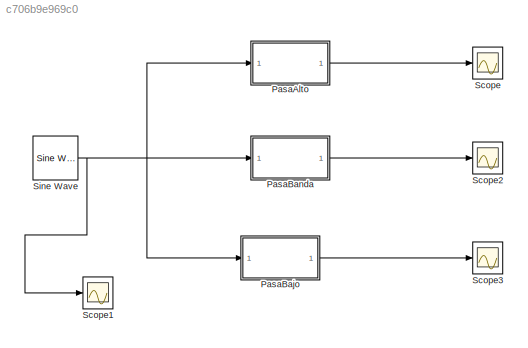
MODEL slx_c706b9e969c0
KIND model
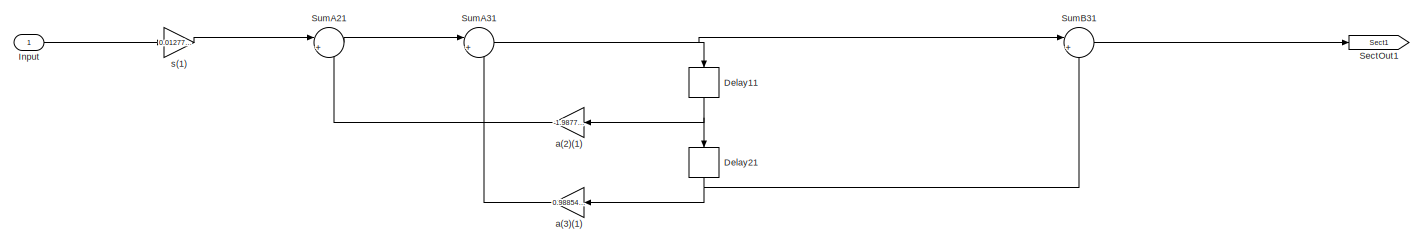
[diagram: PasaAlto - part 1/3, left side, full height]
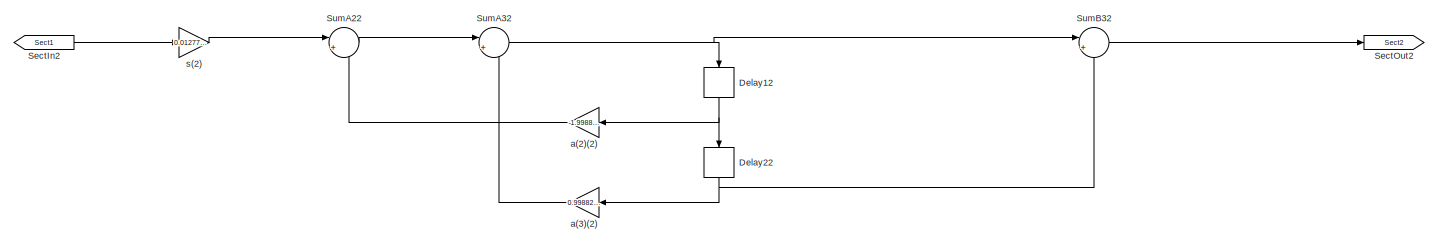
[diagram: PasaAlto - part 2/3, center side, full height]
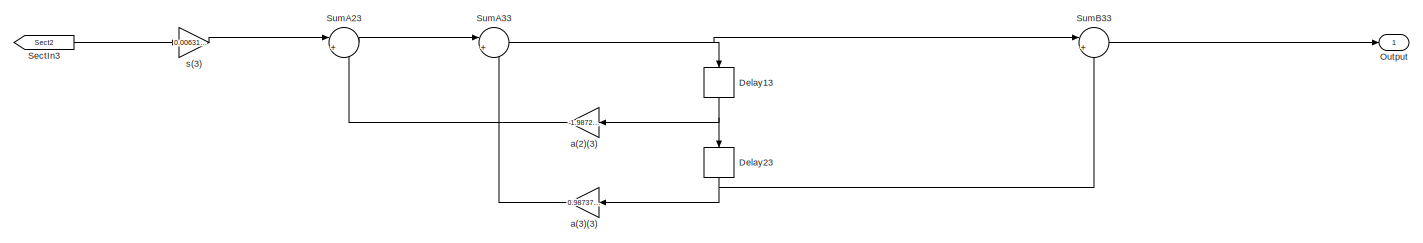
[diagram: PasaAlto - part 3/3, right side, full height]
BLOCK [SubSystem] PasaAlto
  ErrorFcn = dspFilterRealizedInBasicElemsAlgLoopErrFcnCallback
  Ports = [1, 1]
  RequestExecContextInheritance = off
  Tag = FilterWizardSubSystem
  UserDataPersistent = on
BLOCK [Delay] PasaAlto/Delay11
  DelayLength = 1
  InitialCondition = 0
  InputPortMap = u0
  Ports = [1, 1]
BLOCK [Delay] PasaAlto/Delay12
  DelayLength = 1
  InitialCondition = 0
  InputPortMap = u0
  Ports = [1, 1]
BLOCK [Delay] PasaAlto/Delay13
  DelayLength = 1
  InitialCondition = 0
  InputPortMap = u0
  Ports = [1, 1]
BLOCK [Delay] PasaAlto/Delay21
  DelayLength = 1
  InitialCondition = 0
  InputPortMap = u0
  Ports = [1, 1]
BLOCK [Delay] PasaAlto/Delay22
  DelayLength = 1
  InitialCondition = 0
  InputPortMap = u0
  Ports = [1, 1]
BLOCK [Delay] PasaAlto/Delay23
  DelayLength = 1
  InitialCondition = 0
  InputPortMap = u0
  Ports = [1, 1]
BLOCK [Inport] PasaAlto/Input
  IconDisplay = Port number
BLOCK [Outport] PasaAlto/Output
  IconDisplay = Port number
BLOCK [From] PasaAlto/SectIn2
  GotoTag = Sect1
BLOCK [From] PasaAlto/SectIn3
  GotoTag = Sect2
BLOCK [Goto] PasaAlto/SectOut1
  GotoTag = Sect1
BLOCK [Goto] PasaAlto/SectOut2
  GotoTag = Sect2
BLOCK [Sum] PasaAlto/SumA21
  IconShape = round
  InputSameDT = off
  Inputs = |+-
  Ports = [2, 1]
  RndMeth = Nearest
BLOCK [Sum] PasaAlto/SumA22
  IconShape = round
  InputSameDT = off
  Inputs = |+-
  Ports = [2, 1]
  RndMeth = Nearest
BLOCK [Sum] PasaAlto/SumA23
  IconShape = round
  InputSameDT = off
  Inputs = |+-
  Ports = [2, 1]
  RndMeth = Nearest
BLOCK [Sum] PasaAlto/SumA31
  IconShape = round
  InputSameDT = off
  Inputs = |+-
  Ports = [2, 1]
  RndMeth = Nearest
BLOCK [Sum] PasaAlto/SumA32
  IconShape = round
  InputSameDT = off
  Inputs = |+-
  Ports = [2, 1]
  RndMeth = Nearest
BLOCK [Sum] PasaAlto/SumA33
  IconShape = round
  InputSameDT = off
  Inputs = |+-
  Ports = [2, 1]
  RndMeth = Nearest
BLOCK [Sum] PasaAlto/SumB31
  IconShape = round
  InputSameDT = off
  Inputs = |+-
  Ports = [2, 1]
  RndMeth = Nearest
BLOCK [Sum] PasaAlto/SumB32
  IconShape = round
  InputSameDT = off
  Inputs = |+-
  Ports = [2, 1]
  RndMeth = Nearest
BLOCK [Sum] PasaAlto/SumB33
  IconShape = round
  InputSameDT = off
  Inputs = |+-
  Ports = [2, 1]
  RndMeth = Nearest
BLOCK [Gain] PasaAlto/a(2)(1)
  Gain = -1.987749588608001
  ParamDataTypeStr = double
  RndMeth = Nearest
BLOCK [Gain] PasaAlto/a(2)(2)
  Gain = -1.9988145281753462
  ParamDataTypeStr = double
  RndMeth = Nearest
BLOCK [Gain] PasaAlto/a(2)(3)
  Gain = -1.9872962847354858
  ParamDataTypeStr = double
  RndMeth = Nearest
BLOCK [Gain] PasaAlto/a(3)(1)
  Gain = 0.98854305439553891
  ParamDataTypeStr = double
  RndMeth = Nearest
BLOCK [Gain] PasaAlto/a(3)(2)
  Gain = 0.99882285965077311
  ParamDataTypeStr = double
  RndMeth = Nearest
BLOCK [Gain] PasaAlto/a(3)(3)
  Gain = 0.98737734082979844
  ParamDataTypeStr = double
  RndMeth = Nearest
BLOCK [Gain] PasaAlto/s(1)
  Gain = 0.012773832846286337
  ParamDataTypeStr = double
  RndMeth = Nearest
BLOCK [Gain] PasaAlto/s(2)
  Gain = 0.012773832846286337
  ParamDataTypeStr = double
  RndMeth = Nearest
BLOCK [Gain] PasaAlto/s(3)
  Gain = 0.0063113295851007847
  ParamDataTypeStr = double
  RndMeth = Nearest
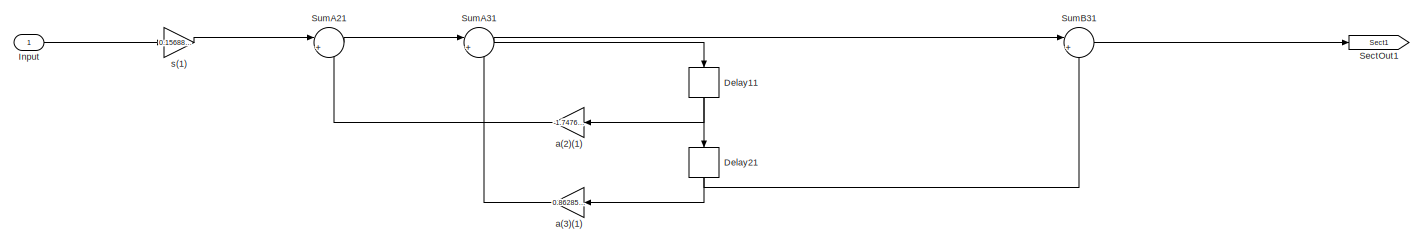
[diagram: PasaBajo - part 1/3, left side, full height]
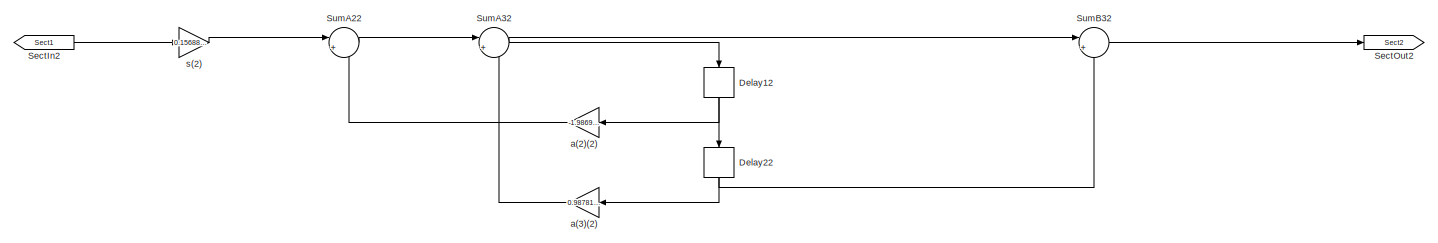
[diagram: PasaBajo - part 2/3, center side, full height]
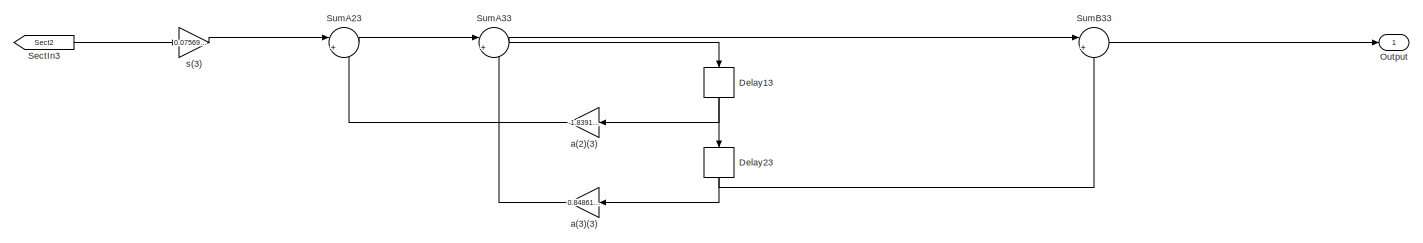
[diagram: PasaBajo - part 3/3, right side, full height]
BLOCK [SubSystem] PasaBajo
  ErrorFcn = dspFilterRealizedInBasicElemsAlgLoopErrFcnCallback
  Ports = [1, 1]
  RequestExecContextInheritance = off
  Tag = FilterWizardSubSystem
  UserDataPersistent = on
BLOCK [Delay] PasaBajo/Delay11
  DelayLength = 1
  InitialCondition = 0
  InputPortMap = u0
  Ports = [1, 1]
BLOCK [Delay] PasaBajo/Delay12
  DelayLength = 1
  InitialCondition = 0
  InputPortMap = u0
  Ports = [1, 1]
BLOCK [Delay] PasaBajo/Delay13
  DelayLength = 1
  InitialCondition = 0
  InputPortMap = u0
  Ports = [1, 1]
BLOCK [Delay] PasaBajo/Delay21
  DelayLength = 1
  InitialCondition = 0
  InputPortMap = u0
  Ports = [1, 1]
BLOCK [Delay] PasaBajo/Delay22
  DelayLength = 1
  InitialCondition = 0
  InputPortMap = u0
  Ports = [1, 1]
BLOCK [Delay] PasaBajo/Delay23
  DelayLength = 1
  InitialCondition = 0
  InputPortMap = u0
  Ports = [1, 1]
BLOCK [Inport] PasaBajo/Input
  IconDisplay = Port number
BLOCK [Outport] PasaBajo/Output
  IconDisplay = Port number
BLOCK [From] PasaBajo/SectIn2
  GotoTag = Sect1
BLOCK [From] PasaBajo/SectIn3
  GotoTag = Sect2
BLOCK [Goto] PasaBajo/SectOut1
  GotoTag = Sect1
BLOCK [Goto] PasaBajo/SectOut2
  GotoTag = Sect2
BLOCK [Sum] PasaBajo/SumA21
  IconShape = round
  InputSameDT = off
  Inputs = |+-
  Ports = [2, 1]
  RndMeth = Nearest
BLOCK [Sum] PasaBajo/SumA22
  IconShape = round
  InputSameDT = off
  Inputs = |+-
  Ports = [2, 1]
  RndMeth = Nearest
BLOCK [Sum] PasaBajo/SumA23
  IconShape = round
  InputSameDT = off
  Inputs = |+-
  Ports = [2, 1]
  RndMeth = Nearest
BLOCK [Sum] PasaBajo/SumA31
  IconShape = round
  InputSameDT = off
  Inputs = |+-
  Ports = [2, 1]
  RndMeth = Nearest
BLOCK [Sum] PasaBajo/SumA32
  IconShape = round
  InputSameDT = off
  Inputs = |+-
  Ports = [2, 1]
  RndMeth = Nearest
BLOCK [Sum] PasaBajo/SumA33
  IconShape = round
  InputSameDT = off
  Inputs = |+-
  Ports = [2, 1]
  RndMeth = Nearest
BLOCK [Sum] PasaBajo/SumB31
  IconShape = round
  InputSameDT = off
  Inputs = |+-
  Ports = [2, 1]
  RndMeth = Nearest
BLOCK [Sum] PasaBajo/SumB32
  IconShape = round
  InputSameDT = off
  Inputs = |+-
  Ports = [2, 1]
  RndMeth = Nearest
BLOCK [Sum] PasaBajo/SumB33
  IconShape = round
  InputSameDT = off
  Inputs = |+-
  Ports = [2, 1]
  RndMeth = Nearest
BLOCK [Gain] PasaBajo/a(2)(1)
  Gain = -1.7476067146279091
  ParamDataTypeStr = double
  RndMeth = Nearest
BLOCK [Gain] PasaBajo/a(2)(2)
  Gain = -1.9869868385575717
  ParamDataTypeStr = double
  RndMeth = Nearest
BLOCK [Gain] PasaBajo/a(2)(3)
  Gain = -1.8391151401762007
  ParamDataTypeStr = double
  RndMeth = Nearest
BLOCK [Gain] PasaBajo/a(3)(1)
  Gain = 0.86285816359711542
  ParamDataTypeStr = double
  RndMeth = Nearest
BLOCK [Gain] PasaBajo/a(3)(2)
  Gain = 0.98781347416610443
  ParamDataTypeStr = double
  RndMeth = Nearest
BLOCK [Gain] PasaBajo/a(3)(3)
  Gain = 0.848616819712536
  ParamDataTypeStr = double
  RndMeth = Nearest
BLOCK [Gain] PasaBajo/s(1)
  Gain = 0.15688754772422159
  ParamDataTypeStr = double
  RndMeth = Nearest
BLOCK [Gain] PasaBajo/s(2)
  Gain = 0.15688754772422159
  ParamDataTypeStr = double
  RndMeth = Nearest
BLOCK [Gain] PasaBajo/s(3)
  Gain = 0.075691590143732002
  ParamDataTypeStr = double
  RndMeth = Nearest
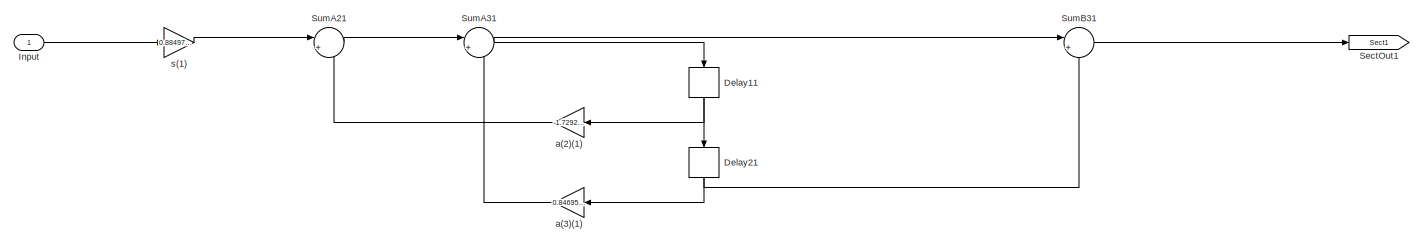
[diagram: PasaBanda - part 1/3, left side, full height]
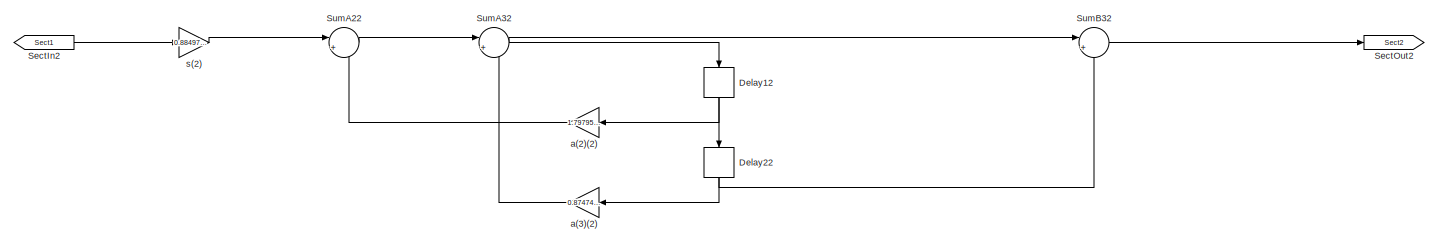
[diagram: PasaBanda - part 2/3, center side, full height]
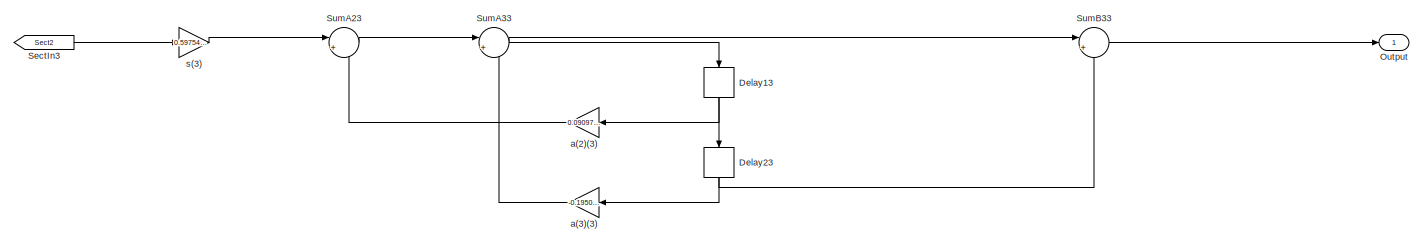
[diagram: PasaBanda - part 3/3, right side, full height]
BLOCK [SubSystem] PasaBanda
  ErrorFcn = dspFilterRealizedInBasicElemsAlgLoopErrFcnCallback
  Ports = [1, 1]
  RequestExecContextInheritance = off
  Tag = FilterWizardSubSystem
  UserDataPersistent = on
BLOCK [Delay] PasaBanda/Delay11
  DelayLength = 1
  InitialCondition = 0
  InputPortMap = u0
  Ports = [1, 1]
BLOCK [Delay] PasaBanda/Delay12
  DelayLength = 1
  InitialCondition = 0
  InputPortMap = u0
  Ports = [1, 1]
BLOCK [Delay] PasaBanda/Delay13
  DelayLength = 1
  InitialCondition = 0
  InputPortMap = u0
  Ports = [1, 1]
BLOCK [Delay] PasaBanda/Delay21
  DelayLength = 1
  InitialCondition = 0
  InputPortMap = u0
  Ports = [1, 1]
BLOCK [Delay] PasaBanda/Delay22
  DelayLength = 1
  InitialCondition = 0
  InputPortMap = u0
  Ports = [1, 1]
BLOCK [Delay] PasaBanda/Delay23
  DelayLength = 1
  InitialCondition = 0
  InputPortMap = u0
  Ports = [1, 1]
BLOCK [Inport] PasaBanda/Input
  IconDisplay = Port number
BLOCK [Outport] PasaBanda/Output
  IconDisplay = Port number
BLOCK [From] PasaBanda/SectIn2
  GotoTag = Sect1
BLOCK [From] PasaBanda/SectIn3
  GotoTag = Sect2
BLOCK [Goto] PasaBanda/SectOut1
  GotoTag = Sect1
BLOCK [Goto] PasaBanda/SectOut2
  GotoTag = Sect2
BLOCK [Sum] PasaBanda/SumA21
  IconShape = round
  InputSameDT = off
  Inputs = |+-
  Ports = [2, 1]
  RndMeth = Nearest
BLOCK [Sum] PasaBanda/SumA22
  IconShape = round
  InputSameDT = off
  Inputs = |+-
  Ports = [2, 1]
  RndMeth = Nearest
BLOCK [Sum] PasaBanda/SumA23
  IconShape = round
  InputSameDT = off
  Inputs = |+-
  Ports = [2, 1]
  RndMeth = Nearest
BLOCK [Sum] PasaBanda/SumA31
  IconShape = round
  InputSameDT = off
  Inputs = |+-
  Ports = [2, 1]
  RndMeth = Nearest
BLOCK [Sum] PasaBanda/SumA32
  IconShape = round
  InputSameDT = off
  Inputs = |+-
  Ports = [2, 1]
  RndMeth = Nearest
BLOCK [Sum] PasaBanda/SumA33
  IconShape = round
  InputSameDT = off
  Inputs = |+-
  Ports = [2, 1]
  RndMeth = Nearest
BLOCK [Sum] PasaBanda/SumB31
  IconShape = round
  InputSameDT = off
  Inputs = |+-
  Ports = [2, 1]
  RndMeth = Nearest
BLOCK [Sum] PasaBanda/SumB32
  IconShape = round
  InputSameDT = off
  Inputs = |+-
  Ports = [2, 1]
  RndMeth = Nearest
BLOCK [Sum] PasaBanda/SumB33
  IconShape = round
  InputSameDT = off
  Inputs = |+-
  Ports = [2, 1]
  RndMeth = Nearest
BLOCK [Gain] PasaBanda/a(2)(1)
  Gain = -1.7292195717005869
  ParamDataTypeStr = double
  RndMeth = Nearest
BLOCK [Gain] PasaBanda/a(2)(2)
  Gain = 1.797957474694678
  ParamDataTypeStr = double
  RndMeth = Nearest
BLOCK [Gain] PasaBanda/a(2)(3)
  Gain = 0.090972797076221579
  ParamDataTypeStr = double
  RndMeth = Nearest
BLOCK [Gain] PasaBanda/a(3)(1)
  Gain = 0.84695672795657673
  ParamDataTypeStr = double
  RndMeth = Nearest
BLOCK [Gain] PasaBanda/a(3)(2)
  Gain = 0.87474639288367206
  ParamDataTypeStr = double
  RndMeth = Nearest
BLOCK [Gain] PasaBanda/a(3)(3)
  Gain = -0.19508844867184374
  ParamDataTypeStr = double
  RndMeth = Nearest
BLOCK [Gain] PasaBanda/s(1)
  Gain = 0.88497051970122076
  ParamDataTypeStr = double
  RndMeth = Nearest
BLOCK [Gain] PasaBanda/s(2)
  Gain = 0.88497051970122076
  ParamDataTypeStr = double
  RndMeth = Nearest
BLOCK [Gain] PasaBanda/s(3)
  Gain = 0.59754422433592191
  ParamDataTypeStr = double
  RndMeth = Nearest
BLOCK [Scope] Scope
  Floating = off
  NumInputPorts = 1
  Ports = [1]
  ShowLegends = off
BLOCK [Scope] Scope1
  Floating = off
  NumInputPorts = 1
  Ports = [1]
  SaveName = ScopeData1
  ShowLegends = off
BLOCK [Scope] Scope2
  Floating = off
  NumInputPorts = 1
  Ports = [1]
  SaveName = ScopeData2
  ShowLegends = off
BLOCK [Scope] Scope3
  Floating = off
  NumInputPorts = 1
  Ports = [1]
  SaveName = ScopeData3
  ShowLegends = off
BLOCK [Reference] Sine Wave  REF=dspsrcs4/Sine Wave
  Amplitude = 1
  CompMethod = Trigonometric fcn
  Frequency = 20000
  LastOutDataTypeStr = double
  OutComplex = Real
  OutDataTypeStr = double
  Phase = 0
  Ports = [0, 1]
  ResetState = Restart at time zero
  SampleMode = Discrete
  SampleTime = 1/1000
  SamplesPerFrame = 1
  SourceBlock = dspsrcs4/Sine Wave
  SourceType = Sine Wave
  TableSize = Speed
  additionalParams = off
  allowOverrides = on
  dataType = double
  fracBitsMode = Best precision
  numFracBits = 15
  udDataType = sfix(16)
  wordLen = 16
NET PasaAlto/Delay11:1 -> PasaAlto/Delay21:1, PasaAlto/a(2)(1):1
NET PasaAlto/Delay12:1 -> PasaAlto/Delay22:1, PasaAlto/a(2)(2):1
NET PasaAlto/Delay13:1 -> PasaAlto/Delay23:1, PasaAlto/a(2)(3):1
NET PasaAlto/Delay21:1 -> PasaAlto/SumB31:2, PasaAlto/a(3)(1):1
NET PasaAlto/Delay22:1 -> PasaAlto/SumB32:2, PasaAlto/a(3)(2):1
NET PasaAlto/Delay23:1 -> PasaAlto/SumB33:2, PasaAlto/a(3)(3):1
LINE PasaAlto/Input:1 -> PasaAlto/s(1):1
LINE PasaAlto/SectIn2:1 -> PasaAlto/s(2):1
LINE PasaAlto/SectIn3:1 -> PasaAlto/s(3):1
LINE PasaAlto/SumA21:1 -> PasaAlto/SumA31:1
LINE PasaAlto/SumA22:1 -> PasaAlto/SumA32:1
LINE PasaAlto/SumA23:1 -> PasaAlto/SumA33:1
NET PasaAlto/SumA31:1 -> PasaAlto/Delay11:1, PasaAlto/SumB31:1
NET PasaAlto/SumA32:1 -> PasaAlto/Delay12:1, PasaAlto/SumB32:1
NET PasaAlto/SumA33:1 -> PasaAlto/Delay13:1, PasaAlto/SumB33:1
LINE PasaAlto/SumB31:1 -> PasaAlto/SectOut1:1
LINE PasaAlto/SumB32:1 -> PasaAlto/SectOut2:1
LINE PasaAlto/SumB33:1 -> PasaAlto/Output:1
LINE PasaAlto/a(2)(1):1 -> PasaAlto/SumA21:2
LINE PasaAlto/a(2)(2):1 -> PasaAlto/SumA22:2
LINE PasaAlto/a(2)(3):1 -> PasaAlto/SumA23:2
LINE PasaAlto/a(3)(1):1 -> PasaAlto/SumA31:2
LINE PasaAlto/a(3)(2):1 -> PasaAlto/SumA32:2
LINE PasaAlto/a(3)(3):1 -> PasaAlto/SumA33:2
LINE PasaAlto/s(1):1 -> PasaAlto/SumA21:1
LINE PasaAlto/s(2):1 -> PasaAlto/SumA22:1
LINE PasaAlto/s(3):1 -> PasaAlto/SumA23:1
LINE PasaAlto:1 -> Scope:1
NET PasaBajo/Delay11:1 -> PasaBajo/Delay21:1, PasaBajo/a(2)(1):1
NET PasaBajo/Delay12:1 -> PasaBajo/Delay22:1, PasaBajo/a(2)(2):1
NET PasaBajo/Delay13:1 -> PasaBajo/Delay23:1, PasaBajo/a(2)(3):1
NET PasaBajo/Delay21:1 -> PasaBajo/SumB31:2, PasaBajo/a(3)(1):1
NET PasaBajo/Delay22:1 -> PasaBajo/SumB32:2, PasaBajo/a(3)(2):1
NET PasaBajo/Delay23:1 -> PasaBajo/SumB33:2, PasaBajo/a(3)(3):1
LINE PasaBajo/Input:1 -> PasaBajo/s(1):1
LINE PasaBajo/SectIn2:1 -> PasaBajo/s(2):1
LINE PasaBajo/SectIn3:1 -> PasaBajo/s(3):1
LINE PasaBajo/SumA21:1 -> PasaBajo/SumA31:1
LINE PasaBajo/SumA22:1 -> PasaBajo/SumA32:1
LINE PasaBajo/SumA23:1 -> PasaBajo/SumA33:1
NET PasaBajo/SumA31:1 -> PasaBajo/Delay11:1, PasaBajo/SumB31:1
NET PasaBajo/SumA32:1 -> PasaBajo/Delay12:1, PasaBajo/SumB32:1
NET PasaBajo/SumA33:1 -> PasaBajo/Delay13:1, PasaBajo/SumB33:1
LINE PasaBajo/SumB31:1 -> PasaBajo/SectOut1:1
LINE PasaBajo/SumB32:1 -> PasaBajo/SectOut2:1
LINE PasaBajo/SumB33:1 -> PasaBajo/Output:1
LINE PasaBajo/a(2)(1):1 -> PasaBajo/SumA21:2
LINE PasaBajo/a(2)(2):1 -> PasaBajo/SumA22:2
LINE PasaBajo/a(2)(3):1 -> PasaBajo/SumA23:2
LINE PasaBajo/a(3)(1):1 -> PasaBajo/SumA31:2
LINE PasaBajo/a(3)(2):1 -> PasaBajo/SumA32:2
LINE PasaBajo/a(3)(3):1 -> PasaBajo/SumA33:2
LINE PasaBajo/s(1):1 -> PasaBajo/SumA21:1
LINE PasaBajo/s(2):1 -> PasaBajo/SumA22:1
LINE PasaBajo/s(3):1 -> PasaBajo/SumA23:1
LINE PasaBajo:1 -> Scope3:1
NET PasaBanda/Delay11:1 -> PasaBanda/Delay21:1, PasaBanda/a(2)(1):1
NET PasaBanda/Delay12:1 -> PasaBanda/Delay22:1, PasaBanda/a(2)(2):1
NET PasaBanda/Delay13:1 -> PasaBanda/Delay23:1, PasaBanda/a(2)(3):1
NET PasaBanda/Delay21:1 -> PasaBanda/SumB31:2, PasaBanda/a(3)(1):1
NET PasaBanda/Delay22:1 -> PasaBanda/SumB32:2, PasaBanda/a(3)(2):1
NET PasaBanda/Delay23:1 -> PasaBanda/SumB33:2, PasaBanda/a(3)(3):1
LINE PasaBanda/Input:1 -> PasaBanda/s(1):1
LINE PasaBanda/SectIn2:1 -> PasaBanda/s(2):1
LINE PasaBanda/SectIn3:1 -> PasaBanda/s(3):1
LINE PasaBanda/SumA21:1 -> PasaBanda/SumA31:1
LINE PasaBanda/SumA22:1 -> PasaBanda/SumA32:1
LINE PasaBanda/SumA23:1 -> PasaBanda/SumA33:1
NET PasaBanda/SumA31:1 -> PasaBanda/Delay11:1, PasaBanda/SumB31:1
NET PasaBanda/SumA32:1 -> PasaBanda/Delay12:1, PasaBanda/SumB32:1
NET PasaBanda/SumA33:1 -> PasaBanda/Delay13:1, PasaBanda/SumB33:1
LINE PasaBanda/SumB31:1 -> PasaBanda/SectOut1:1
LINE PasaBanda/SumB32:1 -> PasaBanda/SectOut2:1
LINE PasaBanda/SumB33:1 -> PasaBanda/Output:1
LINE PasaBanda/a(2)(1):1 -> PasaBanda/SumA21:2
LINE PasaBanda/a(2)(2):1 -> PasaBanda/SumA22:2
LINE PasaBanda/a(2)(3):1 -> PasaBanda/SumA23:2
LINE PasaBanda/a(3)(1):1 -> PasaBanda/SumA31:2
LINE PasaBanda/a(3)(2):1 -> PasaBanda/SumA32:2
LINE PasaBanda/a(3)(3):1 -> PasaBanda/SumA33:2
LINE PasaBanda/s(1):1 -> PasaBanda/SumA21:1
LINE PasaBanda/s(2):1 -> PasaBanda/SumA22:1
LINE PasaBanda/s(3):1 -> PasaBanda/SumA23:1
LINE PasaBanda:1 -> Scope2:1
NET Sine Wave:1 -> PasaAlto:1, PasaBajo:1, PasaBanda:1, Scope1:1
note: NET lines group one-source signal fan-out (src -> all destinations, sorted); 1:1 wires keep LINE
